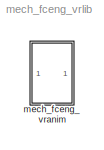
MODEL mech_fceng_vrlib
KIND library
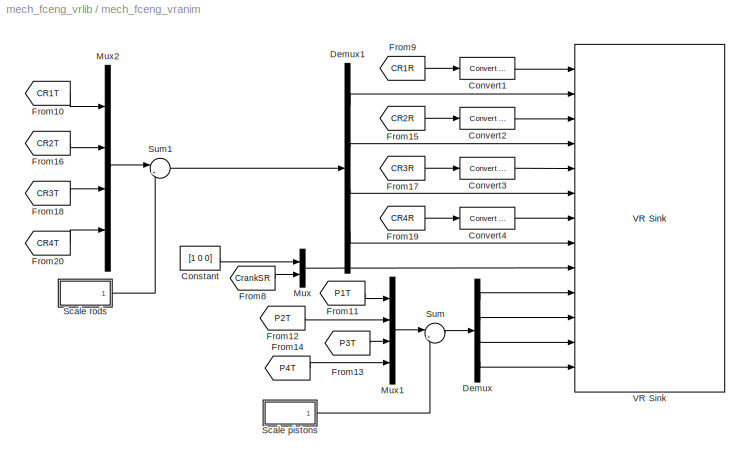
BLOCK [SubSystem] mech_fceng_vranim
  MinAlgLoopOccurrences = off
  Ports = []
  RTWSystemCode = Auto
  TreatAsAtomicUnit = off
BLOCK [Constant] mech_fceng_vranim/Constant
  Value = [1 0 0]
BLOCK [Reference] mech_fceng_vranim/Convert1  REF=mblibv1/Utilities/Convert from Rotation Matrix to\nVirtual Reality Toolbox
  Ports = [1, 1]
  SourceBlock = mblibv1/Utilities/Convert from Rotation Matrix to\nVirtual Reality Toolbox
  SourceType = RotationMatrix2VR
  Tag = Pose2VR
BLOCK [Reference] mech_fceng_vranim/Convert2  REF=mblibv1/Utilities/Convert from Rotation Matrix to\nVirtual Reality Toolbox
  Ports = [1, 1]
  SourceBlock = mblibv1/Utilities/Convert from Rotation Matrix to\nVirtual Reality Toolbox
  SourceType = RotationMatrix2VR
  Tag = Pose2VR
BLOCK [Reference] mech_fceng_vranim/Convert3  REF=mblibv1/Utilities/Convert from Rotation Matrix to\nVirtual Reality Toolbox
  Ports = [1, 1]
  SourceBlock = mblibv1/Utilities/Convert from Rotation Matrix to\nVirtual Reality Toolbox
  SourceType = RotationMatrix2VR
  Tag = Pose2VR
BLOCK [Reference] mech_fceng_vranim/Convert4  REF=mblibv1/Utilities/Convert from Rotation Matrix to\nVirtual Reality Toolbox
  Ports = [1, 1]
  SourceBlock = mblibv1/Utilities/Convert from Rotation Matrix to\nVirtual Reality Toolbox
  SourceType = RotationMatrix2VR
  Tag = Pose2VR
BLOCK [Demux] mech_fceng_vranim/Demux
  Ports = [1, 4]
BLOCK [Demux] mech_fceng_vranim/Demux1
  Ports = [1, 4]
BLOCK [From] mech_fceng_vranim/From10
  CloseFcn = tagdialog Close
  DialogController = Simulink.DDGSource
  GotoTag = CR1T
BLOCK [From] mech_fceng_vranim/From11
  CloseFcn = tagdialog Close
  DialogController = Simulink.DDGSource
  GotoTag = P1T
BLOCK [From] mech_fceng_vranim/From12
  CloseFcn = tagdialog Close
  DialogController = Simulink.DDGSource
  GotoTag = P2T
BLOCK [From] mech_fceng_vranim/From13
  CloseFcn = tagdialog Close
  DialogController = Simulink.DDGSource
  GotoTag = P3T
BLOCK [From] mech_fceng_vranim/From14
  CloseFcn = tagdialog Close
  DialogController = Simulink.DDGSource
  GotoTag = P4T
BLOCK [From] mech_fceng_vranim/From15
  CloseFcn = tagdialog Close
  DialogController = Simulink.DDGSource
  GotoTag = CR2R
BLOCK [From] mech_fceng_vranim/From16
  CloseFcn = tagdialog Close
  DialogController = Simulink.DDGSource
  GotoTag = CR2T
BLOCK [From] mech_fceng_vranim/From17
  CloseFcn = tagdialog Close
  DialogController = Simulink.DDGSource
  GotoTag = CR3R
BLOCK [From] mech_fceng_vranim/From18
  CloseFcn = tagdialog Close
  DialogController = Simulink.DDGSource
  GotoTag = CR3T
BLOCK [From] mech_fceng_vranim/From19
  CloseFcn = tagdialog Close
  DialogController = Simulink.DDGSource
  GotoTag = CR4R
BLOCK [From] mech_fceng_vranim/From20
  CloseFcn = tagdialog Close
  DialogController = Simulink.DDGSource
  GotoTag = CR4T
BLOCK [From] mech_fceng_vranim/From8
  CloseFcn = tagdialog Close
  DialogController = Simulink.DDGSource
  GotoTag = CrankSR
BLOCK [From] mech_fceng_vranim/From9
  CloseFcn = tagdialog Close
  DialogController = Simulink.DDGSource
  GotoTag = CR1R
BLOCK [Mux] mech_fceng_vranim/Mux
  DisplayOption = bar
  Inputs = 2
  Ports = [2, 1]
BLOCK [Mux] mech_fceng_vranim/Mux1
  DisplayOption = bar
  Ports = [4, 1]
BLOCK [Mux] mech_fceng_vranim/Mux2
  DisplayOption = bar
  Ports = [4, 1]
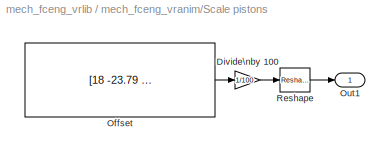
BLOCK [SubSystem] mech_fceng_vranim/Scale pistons
  MinAlgLoopOccurrences = off
  Ports = [0, 1]
  RTWSystemCode = Auto
  TreatAsAtomicUnit = off
BLOCK [Gain] mech_fceng_vranim/Scale pistons/Divide\nby 100
  Gain = 1/100
BLOCK [Constant] mech_fceng_vranim/Scale pistons/Offset
  Value = [18 -23.79 0; 6 -15.30 0;-6 -15.30 0;-18 -23.79 0]'
BLOCK [Outport] mech_fceng_vranim/Scale pistons/Out1
  IconDisplay = Port number
BLOCK [Reference] mech_fceng_vranim/Scale pistons/Reshape  REF=simulink/Math\nOperations/Reshape
  OutputDimensionality = 1-D array
  OutputDimensions = [1,1]
  Ports = [1, 1]
  SourceBlock = simulink/Math\nOperations/Reshape
  SourceType = Reshape
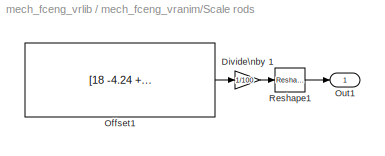
BLOCK [SubSystem] mech_fceng_vranim/Scale rods
  MinAlgLoopOccurrences = off
  Ports = [0, 1]
  RTWSystemCode = Auto
  TreatAsAtomicUnit = off
BLOCK [Gain] mech_fceng_vranim/Scale rods/Divide\nby 1
  Gain = 1/100
BLOCK [Constant] mech_fceng_vranim/Scale rods/Offset1
  Value = [18 -4.24 +4.24;6 4.24 -4.24;-6 4.24 -4.24;-18 -4.24 +4.24]'
BLOCK [Outport] mech_fceng_vranim/Scale rods/Out1
  IconDisplay = Port number
BLOCK [Reference] mech_fceng_vranim/Scale rods/Reshape1  REF=simulink/Math\nOperations/Reshape
  OutputDimensionality = 1-D array
  OutputDimensions = [1,1]
  Ports = [1, 1]
  SourceBlock = simulink/Math\nOperations/Reshape
  SourceType = Reshape
BLOCK [Sum] mech_fceng_vranim/Sum
  IconShape = round
  Inputs = |++
  Ports = [2, 1]
BLOCK [Sum] mech_fceng_vranim/Sum1
  IconShape = round
  Inputs = |++
  Ports = [2, 1]
BLOCK [Reference] mech_fceng_vranim/VR Sink  REF=vrlib/VR Sink
  AutoView = off
  FieldsWritten = ConnRod1.rotation#ConnRod1.translation#ConnRod2.rotation#ConnRod2.translation#ConnRod3.rotation#ConnRod3.translation#ConnRod4.rotation#ConnRod4.translation#CrankShaft.rotation#Piston1.translation#Piston2.translation#Piston3.translation#Piston4.translation
  FigureProperties = {'Position', 'Name', 'Viewpoint', 'CameraBound', 'CameraDirection', 'CameraPosition', 'CameraUpVector', 'ZoomFactor', 'Antialiasing', 'Headlight', 'Lighting', 'PanelMode', 'Textures', 'Transparency', 'Wireframe', 'DeleteFcn', ; }
  Ports = [13]
  RemoteChange = off
  RemoteView = on
  SampleTime = 0.01
  SourceBlock = vrlib/VR Sink
  SourceType = Virtual Reality Sink
  ViewEnable = on
  WorldDescription = Four Cylinder Engine Demo
  WorldFileName = mech_fourcylniceng.wrl
LINE mech_fceng_vranim/Constant:1 -> mech_fceng_vranim/Mux:1
LINE mech_fceng_vranim/Convert1:1 -> mech_fceng_vranim/VR Sink:1
LINE mech_fceng_vranim/Convert2:1 -> mech_fceng_vranim/VR Sink:3
LINE mech_fceng_vranim/Convert3:1 -> mech_fceng_vranim/VR Sink:5
LINE mech_fceng_vranim/Convert4:1 -> mech_fceng_vranim/VR Sink:7
LINE mech_fceng_vranim/Demux1:1 -> mech_fceng_vranim/VR Sink:2
LINE mech_fceng_vranim/Demux1:2 -> mech_fceng_vranim/VR Sink:4
LINE mech_fceng_vranim/Demux1:3 -> mech_fceng_vranim/VR Sink:6
LINE mech_fceng_vranim/Demux1:4 -> mech_fceng_vranim/VR Sink:8
LINE mech_fceng_vranim/Demux:1 -> mech_fceng_vranim/VR Sink:10
LINE mech_fceng_vranim/Demux:2 -> mech_fceng_vranim/VR Sink:11
LINE mech_fceng_vranim/Demux:3 -> mech_fceng_vranim/VR Sink:12
LINE mech_fceng_vranim/Demux:4 -> mech_fceng_vranim/VR Sink:13
LINE mech_fceng_vranim/From10:1 -> mech_fceng_vranim/Mux2:1
LINE mech_fceng_vranim/From11:1 -> mech_fceng_vranim/Mux1:1
LINE mech_fceng_vranim/From12:1 -> mech_fceng_vranim/Mux1:2
LINE mech_fceng_vranim/From13:1 -> mech_fceng_vranim/Mux1:3
LINE mech_fceng_vranim/From14:1 -> mech_fceng_vranim/Mux1:4
LINE mech_fceng_vranim/From15:1 -> mech_fceng_vranim/Convert2:1
LINE mech_fceng_vranim/From16:1 -> mech_fceng_vranim/Mux2:2
LINE mech_fceng_vranim/From17:1 -> mech_fceng_vranim/Convert3:1
LINE mech_fceng_vranim/From18:1 -> mech_fceng_vranim/Mux2:3
LINE mech_fceng_vranim/From19:1 -> mech_fceng_vranim/Convert4:1
LINE mech_fceng_vranim/From20:1 -> mech_fceng_vranim/Mux2:4
LINE mech_fceng_vranim/From8:1 -> mech_fceng_vranim/Mux:2
LINE mech_fceng_vranim/From9:1 -> mech_fceng_vranim/Convert1:1
LINE mech_fceng_vranim/Mux1:1 -> mech_fceng_vranim/Sum:1
LINE mech_fceng_vranim/Mux2:1 -> mech_fceng_vranim/Sum1:1
LINE mech_fceng_vranim/Mux:1 -> mech_fceng_vranim/VR Sink:9
LINE mech_fceng_vranim/Scale pistons/Divide\nby 100:1 -> mech_fceng_vranim/Scale pistons/Reshape:1
LINE mech_fceng_vranim/Scale pistons/Offset:1 -> mech_fceng_vranim/Scale pistons/Divide\nby 100:1
LINE mech_fceng_vranim/Scale pistons/Reshape:1 -> mech_fceng_vranim/Scale pistons/Out1:1
LINE mech_fceng_vranim/Scale pistons:1 -> mech_fceng_vranim/Sum:2
LINE mech_fceng_vranim/Scale rods/Divide\nby 1:1 -> mech_fceng_vranim/Scale rods/Reshape1:1
LINE mech_fceng_vranim/Scale rods/Offset1:1 -> mech_fceng_vranim/Scale rods/Divide\nby 1:1
LINE mech_fceng_vranim/Scale rods/Reshape1:1 -> mech_fceng_vranim/Scale rods/Out1:1
LINE mech_fceng_vranim/Scale rods:1 -> mech_fceng_vranim/Sum1:2
LINE mech_fceng_vranim/Sum1:1 -> mech_fceng_vranim/Demux1:1
LINE mech_fceng_vranim/Sum:1 -> mech_fceng_vranim/Demux:1
